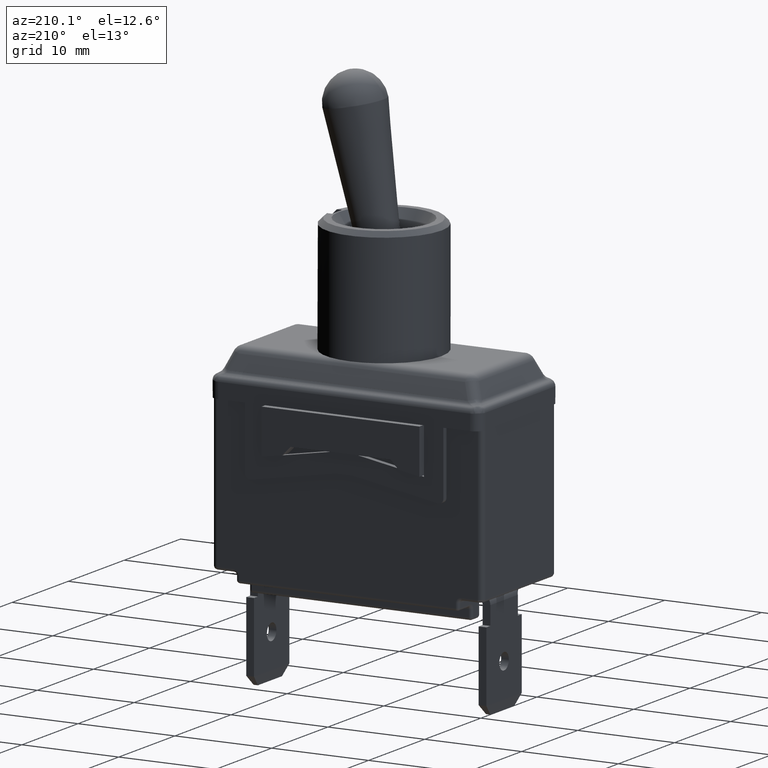
[diagram: clean part render]
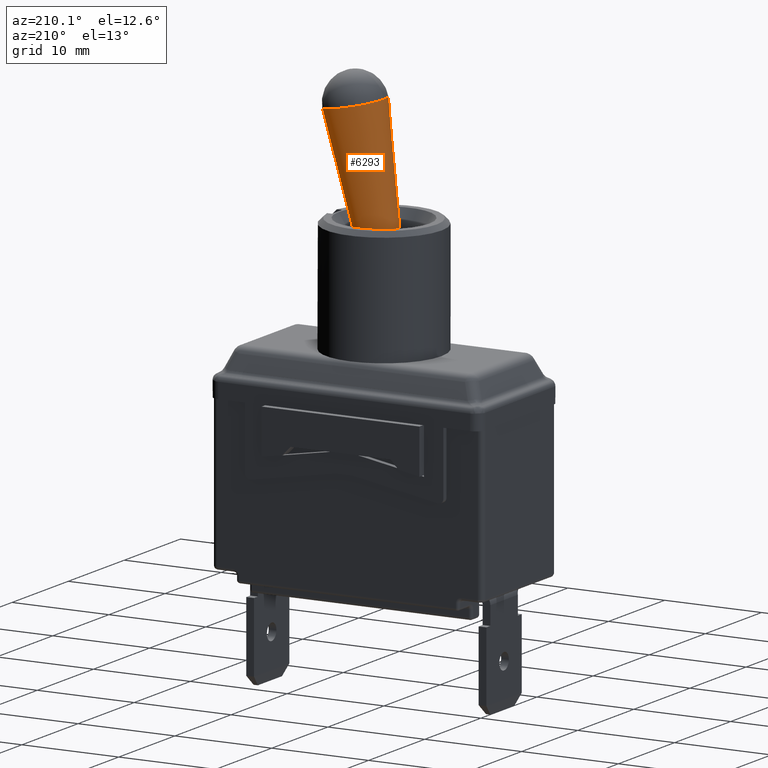
[diagram: same view with one face highlighted and labeled with its STEP entity id]
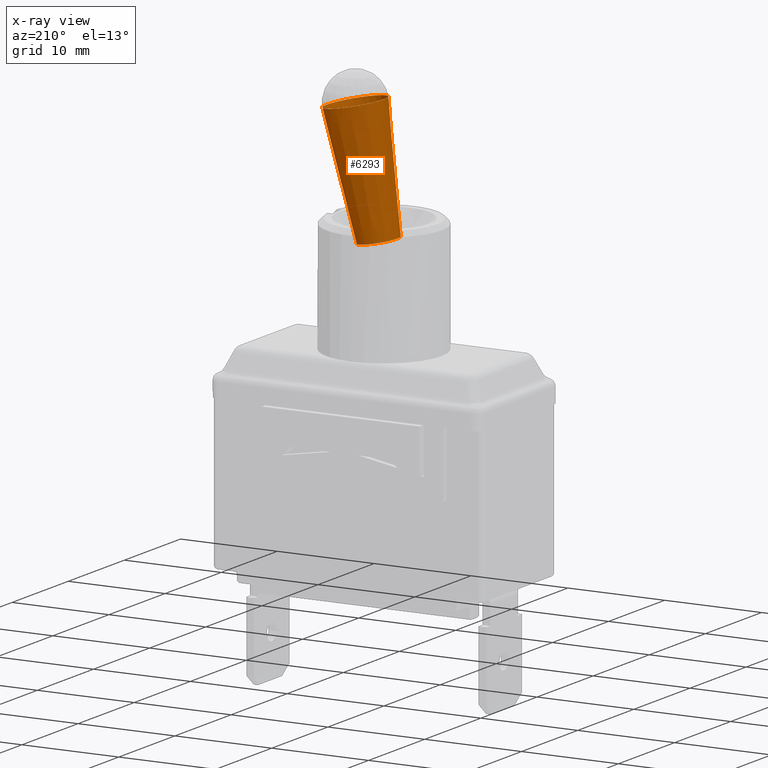
[diagram: x-ray of the same camera — body ghosted, the highlighted face saturated]
A machine part, auxiliary view. The second image highlights one B-rep face of the part: STEP entity #6293.
The next image is the same camera in x-ray: the body ghosted, the highlighted face saturated — about 0% of this face is hidden behind the body in this view.
In plain terms, the highlighted conical surface has half-angle 4.528 deg.
Its self-contained STEP definition (entity closure, byte-faithful):
#214=CONICAL_SURFACE('',#6953,0.25,0.0790259474582748);
#872=LINE('',#11582,#1381);
#1381=VECTOR('',#8745,0.25);
#1882=FACE_OUTER_BOUND('',#2279,.T.);
#2279=EDGE_LOOP('',(#5869,#5870,#5871,#5872,#5873));
#2583=CIRCLE('',#6950,0.3);
#2584=CIRCLE('',#6951,0.3);
#2586=CIRCLE('',#6954,0.2);
#3134=VERTEX_POINT('',#11574);
#3135=VERTEX_POINT('',#11575);
#3137=VERTEX_POINT('',#11581);
#4046=EDGE_CURVE('',#3134,#3135,#2583,.T.);
#4047=EDGE_CURVE('',#3135,#3134,#2584,.T.);
#4049=EDGE_CURVE('',#3135,#3137,#872,.T.);
#4050=EDGE_CURVE('',#3137,#3137,#2586,.T.);
#5869=ORIENTED_EDGE('',*,*,#4046,.F.);
#5870=ORIENTED_EDGE('',*,*,#4047,.F.);
#5871=ORIENTED_EDGE('',*,*,#4049,.T.);
#5872=ORIENTED_EDGE('',*,*,#4050,.T.);
#5873=ORIENTED_EDGE('',*,*,#4049,.F.);
#6293=ADVANCED_FACE('',(#1882),#214,.T.);
#6950=AXIS2_PLACEMENT_3D('',#11576,#8737,#8738);
#6951=AXIS2_PLACEMENT_3D('',#11577,#8739,#8740);
#6953=AXIS2_PLACEMENT_3D('',#11580,#8743,#8744);
#6954=AXIS2_PLACEMENT_3D('',#11583,#8746,#8747);
#8737=DIRECTION('center_axis',(0.190808995376545,0.,0.981627183447664));
#8738=DIRECTION('ref_axis',(-0.981627183447664,0.,0.190808995376545));
#8739=DIRECTION('center_axis',(0.190808995376545,0.,0.981627183447664));
#8740=DIRECTION('ref_axis',(-0.981627183447664,0.,0.190808995376545));
#8743=DIRECTION('center_axis',(0.190808995376545,0.,0.981627183447664));
#8744=DIRECTION('ref_axis',(-0.981627183447664,0.,0.190808995376545));
#8745=DIRECTION('',(-0.267706795232525,-9.66781727572655E-18,-0.963500426458822));
#8746=DIRECTION('center_axis',(0.190808995376545,0.,0.981627183447664));
#8747=DIRECTION('ref_axis',(-0.981627183447664,0.,0.190808995376545));
#11574=CARTESIAN_POINT('',(0.00126578779934494,0.,2.75376483295684));
#11575=CARTESIAN_POINT('',(0.590242097867943,3.67394039744206E-17,2.63927943573092));
#11576=CARTESIAN_POINT('Origin',(0.295753942833644,0.,2.69652213434388));
#11577=CARTESIAN_POINT('Origin',(0.295753942833644,0.,2.69652213434388));
#11580=CARTESIAN_POINT('Origin',(0.175279827103411,0.,2.07673653844343));
#11581=CARTESIAN_POINT('',(0.25113114806271,2.44929359829471E-17,1.41878914346768));
#11582=CARTESIAN_POINT('',(0.420686622965327,3.06161699786838E-17,2.0290342895993));
#11583=CARTESIAN_POINT('Origin',(0.0548057113731773,0.,1.45695094254299));